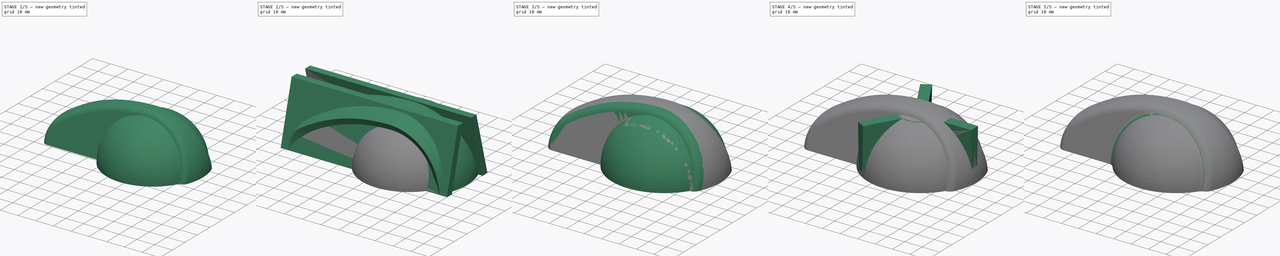
[diagram: build sequence overview — one tinted view per stage of 5, left to right]
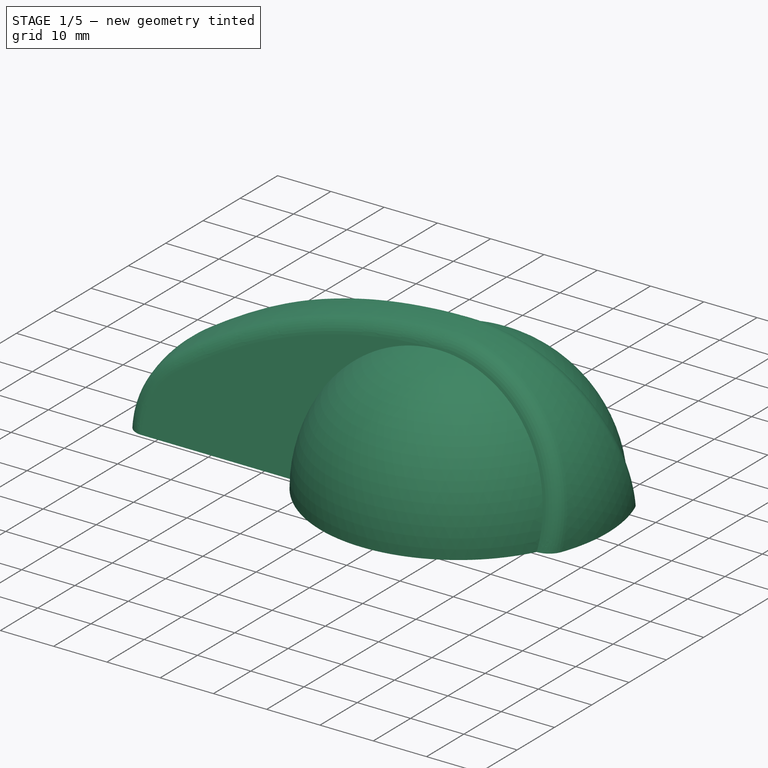
[diagram: stage 1 of 5 — iso view after this stage's code; geometry added in this stage tinted green]
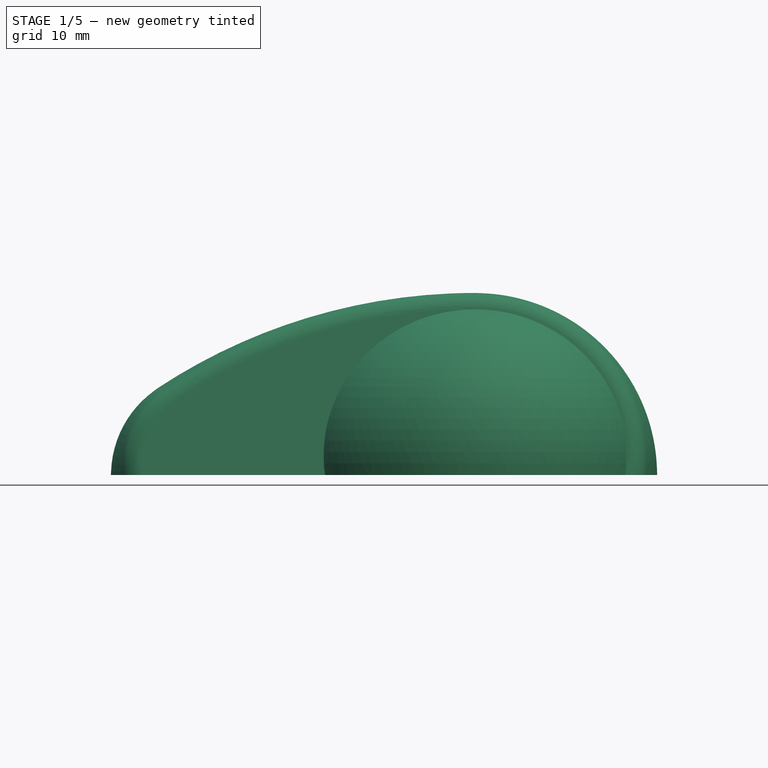
[diagram: stage 1 of 5 — front view after this stage's code; geometry added in this stage tinted green]
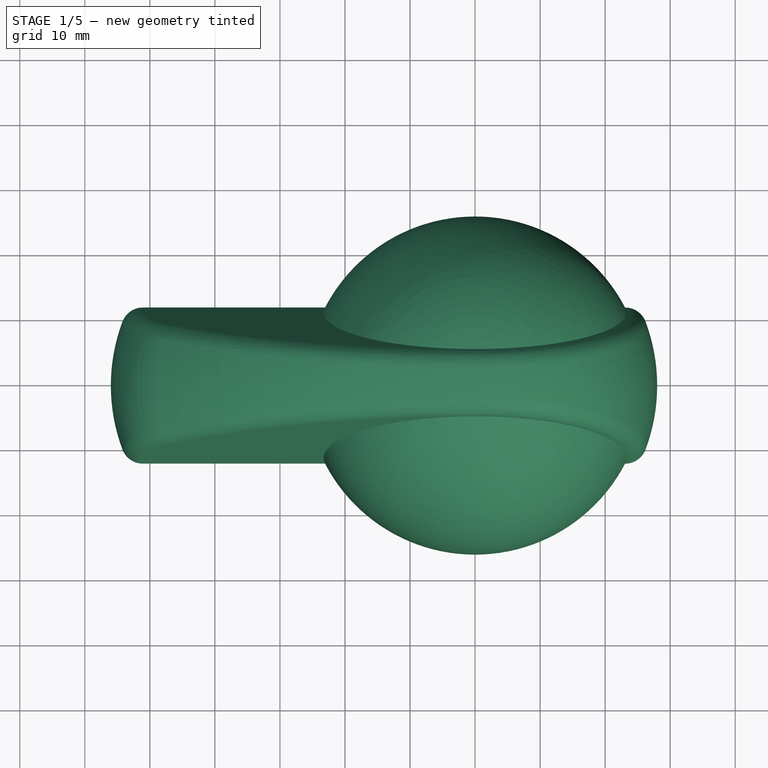
[diagram: stage 1 of 5 — top view after this stage's code; geometry added in this stage tinted green]
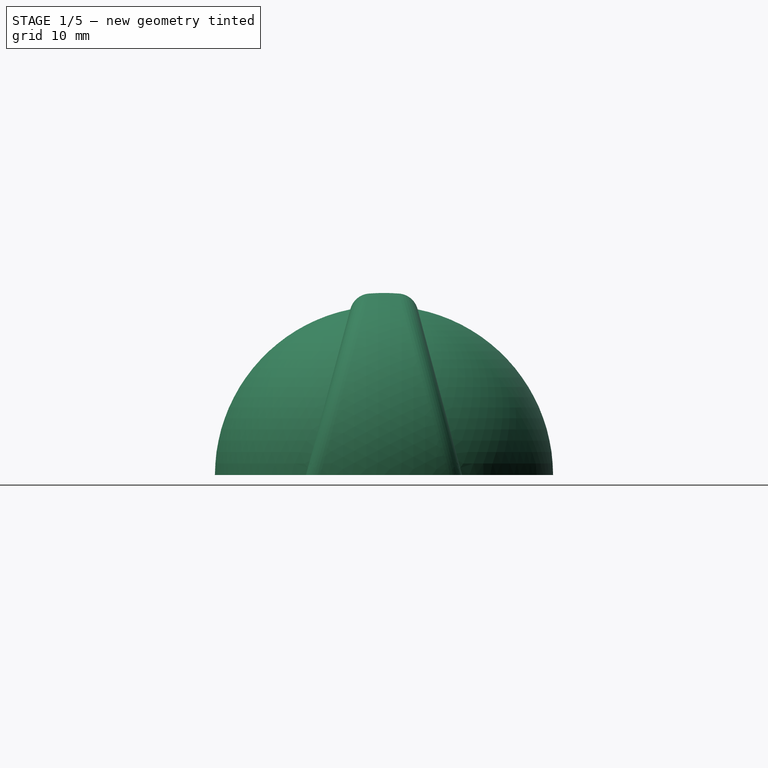
[diagram: stage 1 of 5 — right view after this stage's code; geometry added in this stage tinted green]
FCSTD DOCUMENT  (FreeCAD 1.0R39319 (Git))
Label: Mania2006-S2
License: All rights reserved
LicenseURL: https://en.wikipedia.org/wiki/All_rights_reserved
objects: Sketcher::SketchObject×29, PartDesign::Body×9, PartDesign::Boolean×8, PartDesign::SubtractivePipe×6, PartDesign::Fillet×6, PartDesign::AdditivePipe×3, PartDesign::AdditiveLoft×3, PartDesign::AdditiveSphere×2, App::VarSet×1, PartDesign::Pad×1, PartDesign::PolarPattern×1, PartDesign::FeatureBase×1
note: 150 computed .brp shape members not serialized (recipe doc carries the construction recipe); baked Part::Feature solids carry a one-line shape summary decoded from their .brp

FEATURE [Sketcher::SketchObject] Sketch025  label="InnerBaseBox"
  ArcFitTolerance = 1e-06
  AttachmentSupport = -> [XY_Plane004]
  FullyConstrained = true
  MakeInternals = false
  MapMode = 5
  sketch-geometry (4):
    g0: LineSegment StartX=-56 StartY=12 StartZ=0 EndX=-56 EndY=-12 EndZ=0
    g1: LineSegment StartX=-56 StartY=-12 StartZ=0 EndX=28 EndY=-12 EndZ=0
    g2: LineSegment StartX=28 StartY=-12 StartZ=0 EndX=28 EndY=12 EndZ=0
    g3: LineSegment StartX=28 StartY=12 StartZ=0 EndX=-56 EndY=12 EndZ=0
  constraints (11):
    c: Coincident(g0,g1)
    c: Coincident(g1,g2)
    c: Coincident(g2,g3)
    c: Coincident(g3,g0)
    c: Vertical(g2)
    c: Horizontal(g1)
    c: Horizontal(g3)
    c: DistanceX(g3,g3) = 84
    c: DistanceY(g2,g2) = 24
    c: Symmetric(g0,g0,g-1)
    c: DistanceX(g-1,g2) = 28
FEATURE [Sketcher::SketchObject] Sketch026  label="InnerBaseSweep"
  ArcFitTolerance = 1e-06
  AttachmentSupport = -> [YZ_Plane004]
  ExternalGeometry = -> [Sketch025]
  FullyConstrained = true
  MakeInternals = false
  MapMode = 5
  Placement = pos=(0,0,0) rot=(0.57735,0.57735,0.57735;2.0944rad)
  sketch-geometry (4):
    g0: ArcOfCircle CenterX=0 CenterY=0 CenterZ=0 NormalX=0 NormalY=0 NormalZ=1 AngleXU=0 Radius=28 StartAngle=1.05171 EndAngle=2.03794
    g1: LineSegment StartX=-12.6095 StartY=25 StartZ=0 EndX=-12.6095 EndY=50 EndZ=0
    g2: LineSegment StartX=-12.6095 StartY=50 StartZ=0 EndX=13.8905 EndY=50 EndZ=0
    g3: LineSegment StartX=13.8905 StartY=50 StartZ=0 EndX=13.8905 EndY=24.3116 EndZ=0
  constraints (12):
    c: Coincident(g0,g-1)
    c: Radius(g0) = 28
    c: Coincident(g0,g1)
    c: Coincident(g1,g2)
    c: Horizontal(g2)
    c: Coincident(g2,g3)
    c: Coincident(g3,g0)
    c: Perpendicular(g3,g2)
    c: Perpendicular(g1,g2)
    c: DistanceY(g1,g1) = 25
    c: DistanceX(g2,g2) = 26.5
    c: Distance(g-1,g2) = 50
FEATURE [Sketcher::SketchObject] Sketch027  label="InnerBaseSweepPath"
  ArcFitTolerance = 1e-06
  AttachmentSupport = -> [XZ_Plane004]
  FullyConstrained = true
  MakeInternals = false
  MapMode = 5
  Placement = pos=(0,0,0) rot=(1,0,0;1.5708rad)
  sketch-geometry (3):
    g0: ArcOfCircle CenterX=0 CenterY=0 CenterZ=0 NormalX=0 NormalY=0 NormalZ=1 AngleXU=0 Radius=28 StartAngle=0 EndAngle=1.5708
    g1: ArcOfCircle CenterX=-40 CenterY=0 CenterZ=0 NormalX=0 NormalY=0 NormalZ=1 AngleXU=0 Radius=16 StartAngle=2.15371 EndAngle=3.14159
    g2: ArcOfCircle CenterX=0 CenterY=-60.6667 CenterZ=0 NormalX=0 NormalY=0 NormalZ=1 AngleXU=0 Radius=88.6667 StartAngle=1.5708 EndAngle=2.15371
  constraints (10):
    c: Radius(g0) = 28
    c: Coincident(g0,g-1)
    c: PointOnObject(g0,g-1)
    c: Radius(g1) = 16
    c: PointOnObject(g1,g-1)
    c: DistanceX(g1,g0) = 84
    c: Tangent(g2,g1) = -1.5708
    c: Tangent(g2,g0) = -1.5708
    c: PointOnObject(g0,g-2)
    c: PointOnObject(g1,g-1)
FEATURE [PartDesign::Pad] Pad  label="InnerBox"
  Direction = (0,0,1)
  Length = 30
  Length2 = 10
  Profile = -> Sketch025
  ReferenceAxis = -> Sketch025 [N_Axis]
  Refine = true
  Suppressed = false
  Type = 0
FEATURE [PartDesign::SubtractivePipe] SubtractivePipe003  label="InnerBase"
  AuxilleryCurvelinear = true
  AuxillerySpineTangent = false
  BaseFeature = -> Pad
  Binormal = (0,0,0)
  Mode = 0
  Profile = -> Sketch026
  Refine = true
  Spine = -> Sketch027
  SpineTangent = false
  Suppressed = false
  Transformation = 0
  Transition = 0
FEATURE [Sketcher::SketchObject] Sketch028  label="InnerRWallSide"
  ArcFitTolerance = 1e-06
  AttachmentSupport = -> [XY_Plane004]
  FullyConstrained = true
  MakeInternals = false
  MapMode = 5
  sketch-geometry (4):
    g0: LineSegment StartX=-60 StartY=-12 StartZ=0 EndX=-60 EndY=-18 EndZ=0
    g1: LineSegment StartX=-60 StartY=-18 StartZ=0 EndX=32 EndY=-18 EndZ=0
    g2: LineSegment StartX=32 StartY=-18 StartZ=0 EndX=32 EndY=-12 EndZ=0
    g3: LineSegment StartX=32 StartY=-12 StartZ=0 EndX=-60 EndY=-12 EndZ=0
  constraints (12):
    c: Coincident(g0,g1)
    c: Coincident(g1,g2)
    c: Coincident(g2,g3)
    c: Coincident(g3,g0)
    c: Vertical(g0)
    c: Vertical(g2)
    c: Horizontal(g1)
    c: Horizontal(g3)
    c: Distance(g0,g2) = 92
    c: Distance(g1,g3) = 6
    c: Distance(g3,g-1) = 12
    c: Distance(g-2,g2) = 32
FEATURE [Sketcher::SketchObject] Sketch029  label="InnerRWallSweep"
  ArcFitTolerance = 1e-06
  AttachmentSupport = -> [YZ_Plane004]
  FullyConstrained = true
  MakeInternals = false
  MapMode = 5
  Placement = pos=(0,0,0) rot=(0.57735,0.57735,0.57735;2.0944rad)
  expr: Constraints[1] = 90 ° - <<VarSet>>.Base_Slope
  sketch-geometry (1):
    g0: LineSegment StartX=-15 StartY=0 StartZ=0 EndX=-6.96152 EndY=30 EndZ=0
  constraints (4):
    c: PointOnObject(g0,g-1)
    c: Angle(g-1,g0) = 1.309
    c: Distance(g0,g-2) = 15
    c: DistanceY(g0,g0) = 30
FEATURE [PartDesign::SubtractivePipe] SubtractivePipe004  label="SweepInnerRWall"
  AuxilleryCurvelinear = true
  AuxillerySpineTangent = false
  BaseFeature = -> SubtractivePipe003
  Binormal = (0,0,0)
  Mode = 0
  Profile = -> Sketch028
  Refine = true
  Spine = -> Sketch029
  SpineTangent = false
  Suppressed = false
  Transformation = 0
  Transition = 0
FEATURE [Sketcher::SketchObject] Sketch030  label="InnerLWallSide"
  ArcFitTolerance = 1e-06
  AttachmentSupport = -> [XY_Plane004]
  FullyConstrained = true
  MakeInternals = false
  MapMode = 5
  sketch-geometry (4):
    g0: LineSegment StartX=-60 StartY=18 StartZ=0 EndX=-60 EndY=12 EndZ=0
    g1: LineSegment StartX=-60 StartY=12 StartZ=0 EndX=32 EndY=12 EndZ=0
    g2: LineSegment StartX=32 StartY=12 StartZ=0 EndX=32 EndY=18 EndZ=0
    g3: LineSegment StartX=32 StartY=18 StartZ=0 EndX=-60 EndY=18 EndZ=0
  constraints (12):
    c: Coincident(g0,g1)
    c: Coincident(g1,g2)
    c: Coincident(g2,g3)
    c: Coincident(g3,g0)
    c: Vertical(g0)
    c: Vertical(g2)
    c: Horizontal(g1)
    c: Horizontal(g3)
    c: Distance(g0,g2) = 92
    c: Distance(g1,g3) = 6
    c: Distance(g-1,g1) = 12
    c: Distance(g-2,g2) = 32
FEATURE [Sketcher::SketchObject] Sketch031  label="InnerLWallSweep"
  ArcFitTolerance = 1e-06
  AttachmentSupport = -> [YZ_Plane004]
  FullyConstrained = true
  MakeInternals = false
  MapMode = 5
  Placement = pos=(0,0,0) rot=(0.57735,0.57735,0.57735;2.0944rad)
  expr: Constraints[1] = 90 ° - <<VarSet>>.Base_Slope
  sketch-geometry (1):
    g0: LineSegment StartX=15 StartY=0 StartZ=0 EndX=7.23543 EndY=28.9778 EndZ=0
  constraints (4):
    c: PointOnObject(g0,g-1)
    c: Angle(g0,g-1) = 1.309
    c: Distance(g0,g0) = 30
    c: Distance(g0,g-1) = 15
FEATURE [PartDesign::SubtractivePipe] SubtractivePipe005  label="SweepInnerLWall"
  AuxilleryCurvelinear = true
  AuxillerySpineTangent = false
  BaseFeature = -> SubtractivePipe004
  Binormal = (0,0,0)
  Mode = 0
  Profile = -> Sketch030
  Refine = true
  Spine = -> Sketch031
  SpineTangent = false
  Suppressed = false
  Transformation = 0
  Transition = 0
FEATURE [PartDesign::Body] Body003  label="Shell"
  AllowCompound = false
  Group = -> [Sketch020,Sketch021,Boolean,Boolean001,Boolean002,SubtractivePipe,Sketch,Sketch022,SubtractivePipe001,Sketch023,Sketch024,SubtractivePipe002,Fillet,Sphere001,Boolean006,Boolean007,Fillet003,Fillet004,Fillet005]
  Origin = -> Origin003
  Tip = -> Fillet005
FEATURE [PartDesign::Body] Body004  label="InnerModel"
  AllowCompound = false
  Group = -> [Sketch025,Sketch026,Sketch027,Pad,SubtractivePipe003,Sketch028,Sketch029,SubtractivePipe004,Sketch030,Sketch031,SubtractivePipe005,Sphere,Fillet001,Fillet002]
  Origin = -> Origin004
  Tip = -> Fillet002
FEATURE [PartDesign::AdditiveSphere] Sphere  label="InnerHalfSphere26mm"
  Angle1 = 0
  Angle2 = 90
  Angle3 = 360
  AttacherType = Attacher::AttachEngine3D
  AttachmentSupport = -> [Body003,XY_Plane004,Origin004]
  BaseFeature = -> SubtractivePipe005
  Radius = 26
  Refine = true
  Suppressed = false
FEATURE [PartDesign::Fillet] Fillet001
  Base = -> Sphere [Edge1,Edge11]
  BaseFeature = -> Sphere
  Radius = 3.2
  Refine = true
  SupportTransform = false
  Suppressed = false
  UseAllEdges = false
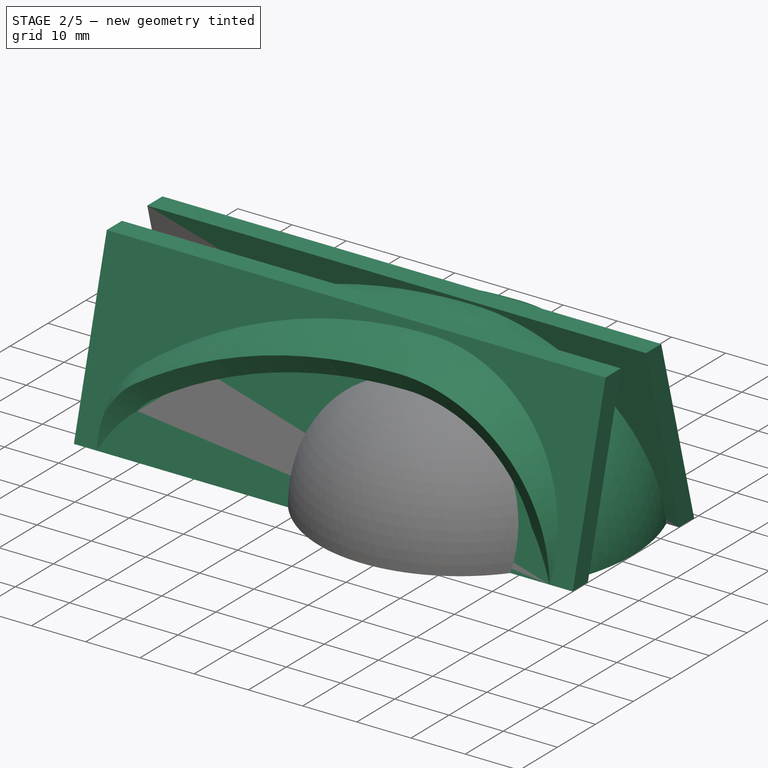
[diagram: stage 2 of 5 — iso view after this stage's code; geometry added in this stage tinted green]
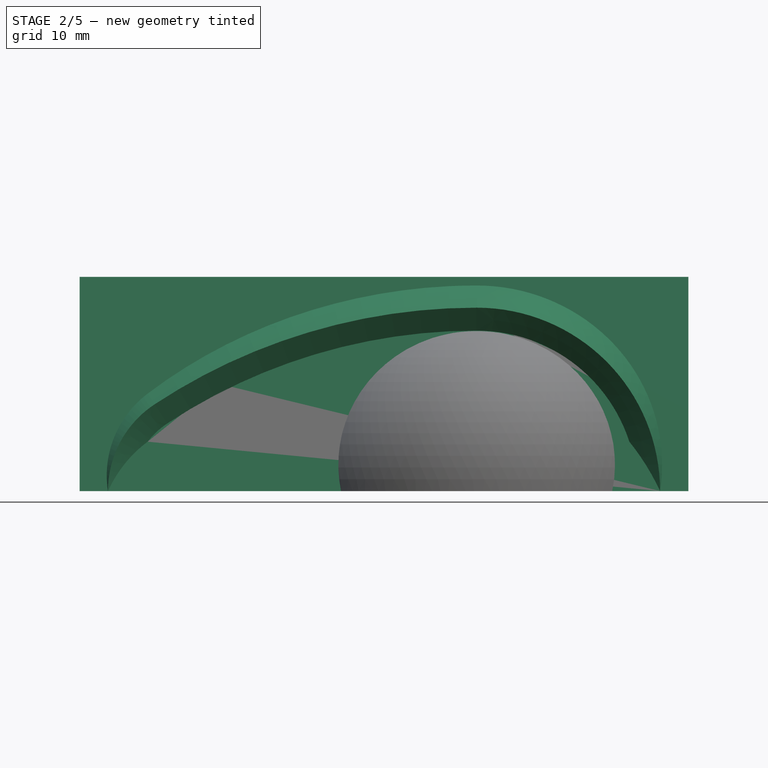
[diagram: stage 2 of 5 — front view after this stage's code; geometry added in this stage tinted green]
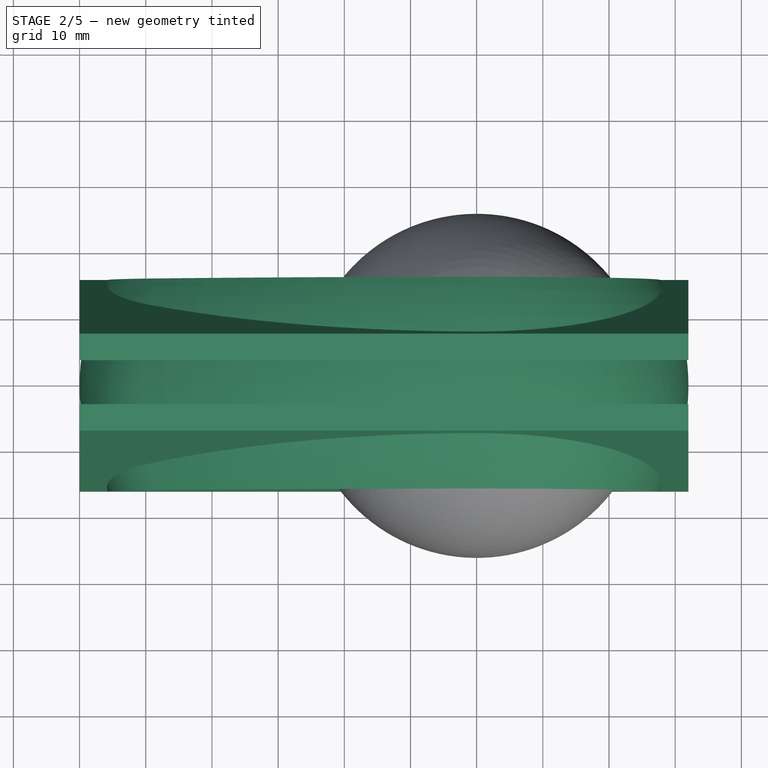
[diagram: stage 2 of 5 — top view after this stage's code; geometry added in this stage tinted green]
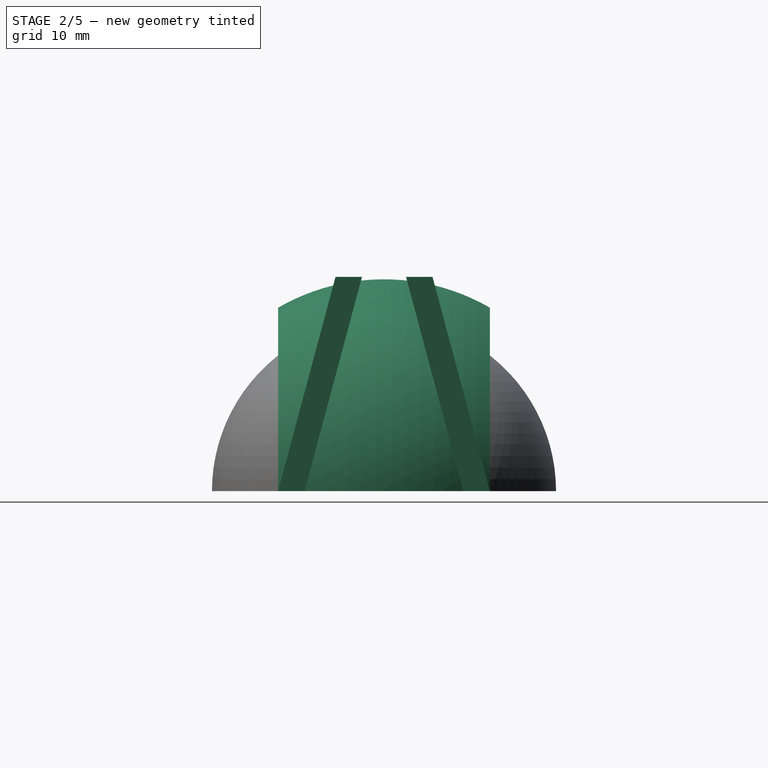
[diagram: stage 2 of 5 — right view after this stage's code; geometry added in this stage tinted green]
FEATURE [Sketcher::SketchObject] Sketch009  label="SweepOutline"
  ArcFitTolerance = 1e-06
  FullyConstrained = false
  MakeInternals = false
  MapMode = 5
  Placement = pos=(0,0,0) rot=(1,0,0;1.5708rad)
  sketch-geometry (3):
    g0: ArcOfCircle CenterX=0 CenterY=0 CenterZ=0 NormalX=0 NormalY=0 NormalZ=1 AngleXU=0 Radius=32 StartAngle=0 EndAngle=1.5708
    g1: ArcOfCircle CenterX=-40 CenterY=0 CenterZ=0 NormalX=0 NormalY=0 NormalZ=1 AngleXU=0 Radius=20 StartAngle=2.15371 EndAngle=3.14159
    g2: ArcOfCircle CenterX=0 CenterY=-60.6667 CenterZ=0 NormalX=0 NormalY=0 NormalZ=1 AngleXU=0 Radius=92.6667 StartAngle=1.5708 EndAngle=2.15371
  constraints (9):
    c: Coincident(g0,g-1)
    c: PointOnObject(g0,g-1)
    c: PointOnObject(g1,g-1)
    c: Radius(g0) = 32
    c: Radius(g1) = 20
    c: DistanceX(g1,g0) = 92
    c: Tangent(g2,g0) = -1.5708
    c: Tangent(g2,g1) = -1.5708
    c: PointOnObject(g2,g-2)
FEATURE [Sketcher::SketchObject] Sketch010  label="base001"
  ArcFitTolerance = 1e-06
  ExternalGeometry = -> [Sketch009]
  FullyConstrained = true
  MakeInternals = false
  MapMode = 5
  sketch-geometry (4):
    g0: LineSegment StartX=32 StartY=-16 StartZ=0 EndX=32 EndY=16 EndZ=0
    g1: LineSegment StartX=32 StartY=16 StartZ=0 EndX=-60 EndY=16 EndZ=0
    g2: LineSegment StartX=-60 StartY=16 StartZ=0 EndX=-60 EndY=-16 EndZ=0
    g3: LineSegment StartX=-60 StartY=-16 StartZ=0 EndX=32 EndY=-16 EndZ=0
  constraints (11):
    c: Coincident(g0,g1)
    c: Coincident(g1,g2)
    c: Coincident(g2,g3)
    c: Coincident(g3,g0)
    c: Vertical(g2)
    c: Horizontal(g1)
    c: Horizontal(g3)
    c: Symmetric(g0,g0,g-1)
    c: PointOnObject(g-4,g0)
    c: DistanceY(g0,g0) = 32
    c: PointOnObject(g-3,g2)
FEATURE [Sketcher::SketchObject] Sketch011  label="R32Outline"
  ArcFitTolerance = 1e-06
  ExternalGeometry = -> [Sketch009,Sketch010]
  FullyConstrained = true
  MakeInternals = false
  MapMode = 5
  Placement = pos=(0,0,0) rot=(0.57735,0.57735,0.57735;2.0944rad)
  sketch-geometry (4):
    g0: ArcOfCircle CenterX=0 CenterY=0 CenterZ=0 NormalX=0 NormalY=0 NormalZ=1 AngleXU=0 Radius=32 StartAngle=1.0472 EndAngle=2.0944
    g1: ArcOfCircle CenterX=0 CenterY=0 CenterZ=0 NormalX=0 NormalY=0 NormalZ=1 AngleXU=0 Radius=28 StartAngle=1.0472 EndAngle=2.0944
    g2: LineSegment StartX=14 StartY=24.2487 StartZ=0 EndX=16 EndY=27.7128 EndZ=0
    g3: LineSegment StartX=-16 StartY=27.7128 StartZ=0 EndX=-14 EndY=24.2487 EndZ=0
  constraints (12):
    c: Coincident(g0,g-1)
    c: Vertical(g0,g-5)
    c: PointOnObject(g-3,g0)
    c: Radius(g1) = 28
    c: Coincident(g1,g0)
    c: Coincident(g2,g1)
    c: Coincident(g2,g0)
    c: Coincident(g3,g0)
    c: Coincident(g3,g1)
    c: Perpendicular(g1,g3)
    c: Horizontal(g0,g0)
    c: Perpendicular(g1,g2)
FEATURE [PartDesign::AdditivePipe] AdditivePipe  label="TopShell"
  AuxilleryCurvelinear = true
  AuxillerySpineTangent = false
  Binormal = (0,0,0)
  Mode = 0
  Placement = pos=(0,0,0) rot=(0.57735,0.57735,0.57735;2.0944rad)
  Profile = -> Sketch011
  Refine = true
  Spine = -> Sketch009
  SpineTangent = false
  Suppressed = false
  Transformation = 0
  Transition = 0
FEATURE [PartDesign::Body] Body
  AllowCompound = false
  Group = -> [Sketch010,Sketch009,Sketch011,AdditivePipe]
  Origin = -> Origin
  Tip = -> AdditivePipe
FEATURE [Sketcher::SketchObject] Sketch013  label="RWallSweep"
  ArcFitTolerance = 1e-06
  AttachmentSupport = -> [YZ_Plane001]
  FullyConstrained = true
  MakeInternals = false
  MapMode = 5
  Placement = pos=(0,0,0) rot=(0.57735,0.57735,0.57735;2.0944rad)
  expr: Constraints[0] = <<VarSet>>.Base_WallHeight
  expr: Constraints[2] = 90 ° - <<VarSet>>.Base_Slope
  sketch-geometry (1):
    g0: LineSegment StartX=-14.4939 StartY=0 StartZ=0 EndX=-5.82343 EndY=32.3585 EndZ=0
  constraints (4):
    c: Distance(g0) = 33.5
    c: PointOnObject(g0,g-1)
    c: Angle(g-1,g0) = 1.309
    c: Distance(g-2,g0) = 14
FEATURE [Sketcher::SketchObject] Sketch014  label="RWall001"
  ArcFitTolerance = 1e-06
  AttachmentSupport = -> [XY_Plane001]
  FullyConstrained = true
  MakeInternals = false
  MapMode = 5
  sketch-geometry (4):
    g0: LineSegment StartX=-60 StartY=-12 StartZ=0 EndX=-60 EndY=-16 EndZ=0
    g1: LineSegment StartX=-60 StartY=-16 StartZ=0 EndX=32 EndY=-16 EndZ=0
    g2: LineSegment StartX=32 StartY=-16 StartZ=0 EndX=32 EndY=-12 EndZ=0
    g3: LineSegment StartX=32 StartY=-12 StartZ=0 EndX=-60 EndY=-12 EndZ=0
  constraints (12):
    c: Coincident(g0,g1)
    c: Coincident(g1,g2)
    c: Coincident(g2,g3)
    c: Coincident(g3,g0)
    c: Vertical(g0)
    c: Vertical(g2)
    c: Horizontal(g1)
    c: Horizontal(g3)
    c: Distance(g1,g-1) = 16
    c: DistanceY(g0,g0) = 4
    c: DistanceX(g0,g-1) = 60
    c: DistanceX(g3,g3) = 92
FEATURE [App::VarSet] VarSet
  Base_Slope = 15
  Base_Tilt = 2
  Base_WallHeight = 33.5
FEATURE [PartDesign::AdditivePipe] AdditivePipe001  label="RWallAdditivePipe"
  AuxilleryCurvelinear = true
  AuxillerySpineTangent = false
  Binormal = (0,0,0)
  Mode = 0
  Profile = -> Sketch014
  Refine = true
  Spine = -> Sketch013
  SpineTangent = false
  Suppressed = false
  Transformation = 0
  Transition = 0
FEATURE [PartDesign::Body] Body001  label="RWall"
  AllowCompound = false
  Group = -> [Sketch014,Sketch013,AdditivePipe001]
  Origin = -> Origin001
  Tip = -> AdditivePipe001
FEATURE [Sketcher::SketchObject] Sketch018  label="LWallSweep"
  ArcFitTolerance = 1e-06
  AttachmentSupport = -> [YZ_Plane002]
  FullyConstrained = true
  MakeInternals = false
  MapMode = 5
  Placement = pos=(0,0,0) rot=(0.57735,0.57735,0.57735;2.0944rad)
  expr: Constraints[1] = 90 ° - <<VarSet>>.Base_Slope
  expr: Constraints[3] = <<VarSet>>.Base_WallHeight
  sketch-geometry (1):
    g0: LineSegment StartX=14 StartY=0 StartZ=0 EndX=5.32956 EndY=32.3585 EndZ=0
  constraints (4):
    c: PointOnObject(g0,g-1)
    c: Angle(g0,g-1) = 1.309
    c: DistanceX(g-1,g0) = 14
    c: Distance(g0,g0) = 33.5
FEATURE [Sketcher::SketchObject] Sketch019  label="LWall001"
  ArcFitTolerance = 1e-06
  AttachmentSupport = -> [XY_Plane002]
  ExternalGeometry = -> [AdditivePipe001]
  FullyConstrained = true
  MakeInternals = false
  MapMode = 5
  sketch-geometry (4):
    g0: LineSegment StartX=-60 StartY=16 StartZ=0 EndX=-60 EndY=12 EndZ=0
    g1: LineSegment StartX=-60 StartY=12 StartZ=0 EndX=32 EndY=12 EndZ=0
    g2: LineSegment StartX=32 StartY=12 StartZ=0 EndX=32 EndY=16 EndZ=0
    g3: LineSegment StartX=32 StartY=16 StartZ=0 EndX=-60 EndY=16 EndZ=0
  constraints (12):
    c: Coincident(g0,g1)
    c: Coincident(g1,g2)
    c: Coincident(g2,g3)
    c: Coincident(g3,g0)
    c: Vertical(g0)
    c: Vertical(g2)
    c: Horizontal(g1)
    c: Horizontal(g3)
    c: Distance(g3,g-1) = 16
    c: Vertical(g0,g-3)
    c: Equal(g-3,g0)
    c: Vertical(g1,g-4)
FEATURE [PartDesign::AdditivePipe] AdditivePipe002
  AuxilleryCurvelinear = true
  AuxillerySpineTangent = false
  Binormal = (0,0,0)
  Mode = 0
  Profile = -> Sketch019
  Refine = true
  Spine = -> Sketch018
  SpineTangent = false
  Suppressed = false
  Transformation = 0
  Transition = 0
FEATURE [PartDesign::Body] Body002  label="LWall"
  AllowCompound = false
  Group = -> [Sketch019,Sketch018,AdditivePipe002]
  Origin = -> Origin002
  Tip = -> AdditivePipe002
FEATURE [Sketcher::SketchObject] Sketch020  label="WallsCut"
  ArcFitTolerance = 1e-06
  ExternalGeometry = -> [Sketch009,Sketch010]
  FullyConstrained = true
  MakeInternals = false
  MapMode = 5
  Placement = pos=(0,0,0) rot=(0.57735,0.57735,0.57735;2.0944rad)
  sketch-geometry (6):
    g0: ArcOfCircle CenterX=0 CenterY=0 CenterZ=0 NormalX=0 NormalY=0 NormalZ=1 AngleXU=0 Radius=32 StartAngle=1.0472 EndAngle=2.0944
    g1: LineSegment StartX=-23 StartY=27.7128 StartZ=0 EndX=-23 EndY=60 EndZ=0
    g2: LineSegment StartX=-23 StartY=60 StartZ=0 EndX=23 EndY=60 EndZ=0
    g3: LineSegment StartX=23 StartY=60 StartZ=0 EndX=23 EndY=27.7128 EndZ=0
    g4: LineSegment StartX=-23 StartY=27.7128 StartZ=0 EndX=-16 EndY=27.7128 EndZ=0
    g5: LineSegment StartX=16 StartY=27.7128 StartZ=0 EndX=23 EndY=27.7128 EndZ=0
  constraints (18):
    c: Coincident(g0,g-1)
    c: PointOnObject(g-3,g0)
    c: Vertical(g1)
    c: Coincident(g1,g2)
    c: Horizontal(g2)
    c: Coincident(g2,g3)
    c: Vertical(g3)
    c: Horizontal(g1,g3)
    c: DistanceX(g2,g2) = 46
    c: Distance(g-1,g2) = 60
    c: Distance(g3,g-2) = 23
    c: Vertical(g0,g-5)
    c: Vertical(g0,g-4)
    c: Coincident(g4,g1)
    c: Coincident(g4,g0)
    c: Coincident(g5,g0)
    c: Coincident(g5,g3)
    c: Horizontal(g4)
FEATURE [Sketcher::SketchObject] Sketch021  label="WallSweep"
  ArcFitTolerance = 1e-06
  FullyConstrained = false
  MakeInternals = false
  MapMode = 5
  Placement = pos=(0,0,0) rot=(1,0,0;1.5708rad)
  sketch-geometry (3):
    g0: ArcOfCircle CenterX=0 CenterY=0 CenterZ=0 NormalX=0 NormalY=0 NormalZ=1 AngleXU=0 Radius=32 StartAngle=0 EndAngle=1.5708
    g1: ArcOfCircle CenterX=-40 CenterY=0 CenterZ=0 NormalX=0 NormalY=0 NormalZ=1 AngleXU=0 Radius=20 StartAngle=2.15371 EndAngle=3.14159
    g2: ArcOfCircle CenterX=0 CenterY=-60.6667 CenterZ=0 NormalX=0 NormalY=0 NormalZ=1 AngleXU=0 Radius=92.6667 StartAngle=1.5708 EndAngle=2.15371
  constraints (9):
    c: Coincident(g0,g-1)
    c: PointOnObject(g0,g-1)
    c: PointOnObject(g1,g-1)
    c: Radius(g0) = 32
    c: Radius(g1) = 20
    c: DistanceX(g1,g0) = 92
    c: Tangent(g2,g0) = -1.5708
    c: Tangent(g2,g1) = -1.5708
    c: PointOnObject(g2,g-2)
FEATURE [PartDesign::Boolean] Boolean  label="BodyFuse"
  Group = -> [Body]
  Refine = true
  Suppressed = false
  Type = 0
  UsePlacement = true
FEATURE [PartDesign::Boolean] Boolean001  label="RWallFuse"
  BaseFeature = -> Boolean
  Group = -> [Body001]
  Refine = true
  Suppressed = false
  Type = 0
  UsePlacement = true
FEATURE [PartDesign::Fillet] Fillet002
  Base = -> Fillet001 [Edge3,Edge25]
  BaseFeature = -> Fillet001
  Radius = 4
  Refine = true
  SupportTransform = false
  Suppressed = false
  UseAllEdges = false
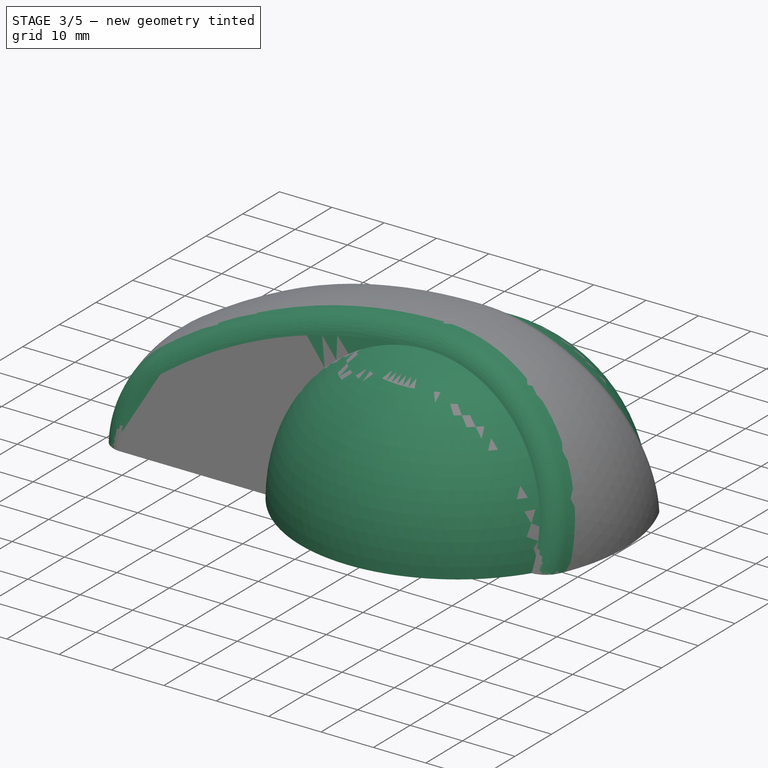
[diagram: stage 3 of 5 — iso view after this stage's code; geometry added in this stage tinted green]
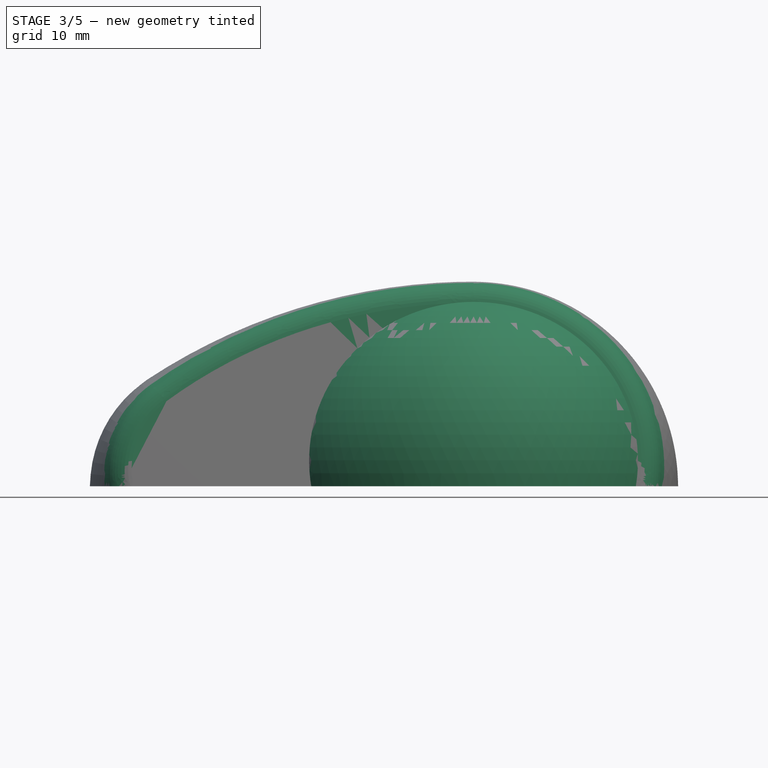
[diagram: stage 3 of 5 — front view after this stage's code; geometry added in this stage tinted green]
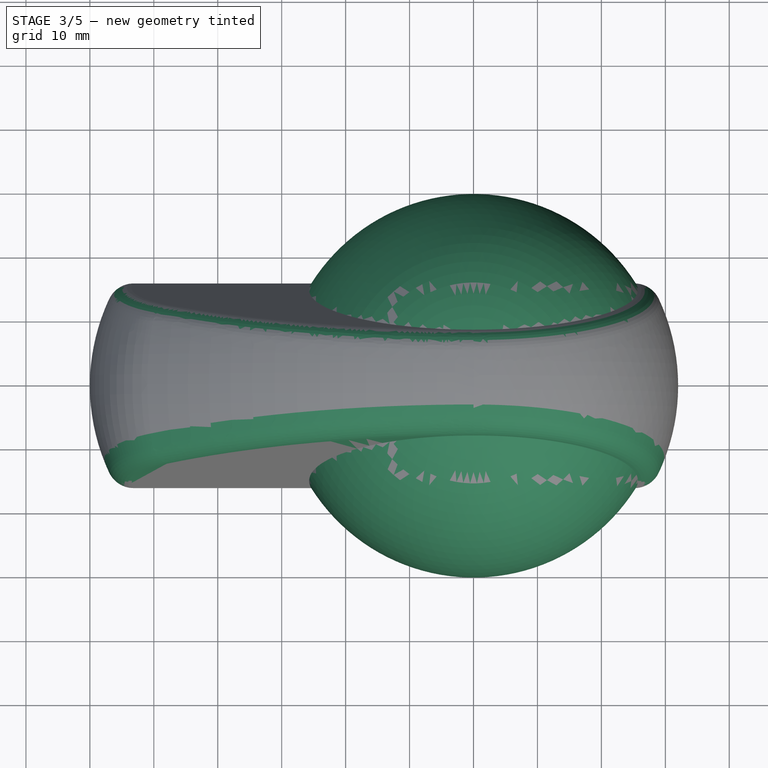
[diagram: stage 3 of 5 — top view after this stage's code; geometry added in this stage tinted green]
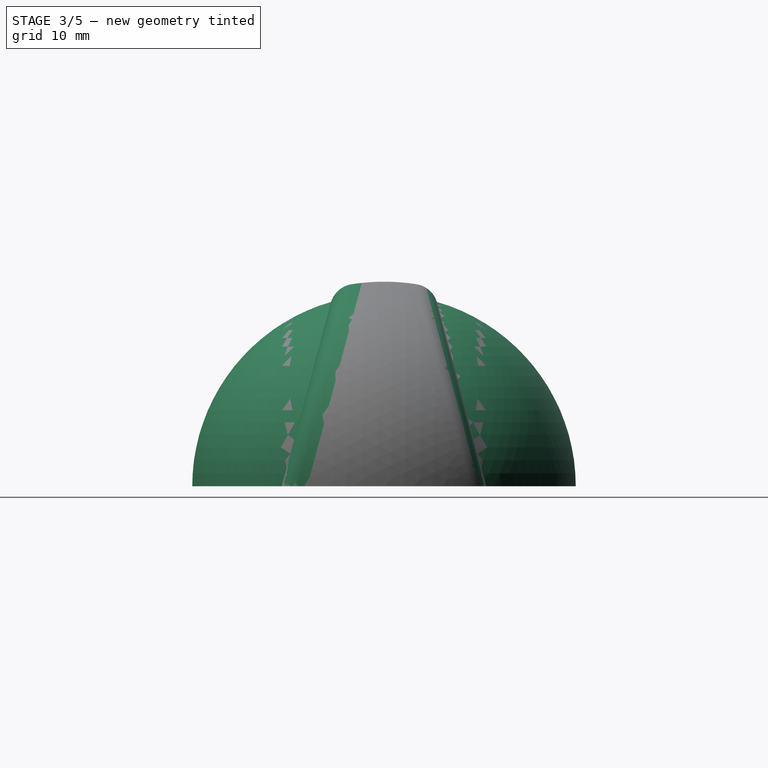
[diagram: stage 3 of 5 — right view after this stage's code; geometry added in this stage tinted green]
FEATURE [PartDesign::Boolean] Boolean002  label="LWallFuse"
  BaseFeature = -> Boolean001
  Group = -> [Body002]
  Refine = true
  Suppressed = false
  Type = 0
  UsePlacement = true
FEATURE [PartDesign::SubtractivePipe] SubtractivePipe  label="SweepWallTop"
  AuxilleryCurvelinear = true
  AuxillerySpineTangent = false
  BaseFeature = -> Boolean002
  Binormal = (0,0,0)
  Mode = 0
  Profile = -> Sketch020
  Refine = true
  Spine = -> Sketch021
  SpineTangent = false
  Suppressed = false
  Transformation = 0
  Transition = 0
FEATURE [Sketcher::SketchObject] Sketch  label="SweepLWallSide001"
  ArcFitTolerance = 1e-06
  AttachmentSupport = -> [XY_Plane003]
  FullyConstrained = true
  MakeInternals = false
  MapMode = 5
  sketch-geometry (4):
    g0: LineSegment StartX=-62 StartY=-16 StartZ=0 EndX=-62 EndY=-22 EndZ=0
    g1: LineSegment StartX=-62 StartY=-22 StartZ=0 EndX=34 EndY=-22 EndZ=0
    g2: LineSegment StartX=34 StartY=-22 StartZ=0 EndX=34 EndY=-16 EndZ=0
    g3: LineSegment StartX=34 StartY=-16 StartZ=0 EndX=-62 EndY=-16 EndZ=0
  constraints (12):
    c: Coincident(g0,g1)
    c: Coincident(g1,g2)
    c: Coincident(g2,g3)
    c: Coincident(g3,g0)
    c: Vertical(g0)
    c: Vertical(g2)
    c: Horizontal(g1)
    c: Horizontal(g3)
    c: Distance(g-1,g3) = 16
    c: DistanceY(g2,g2) = 6
    c: Distance(g2,g0) = 96
    c: Distance(g-2,g2) = 34
FEATURE [Sketcher::SketchObject] Sketch022  label="LWallSideSweep"
  ArcFitTolerance = 1e-06
  AttachmentSupport = -> [YZ_Plane003]
  FullyConstrained = true
  MakeInternals = false
  MapMode = 5
  Placement = pos=(0,0,0) rot=(0.57735,0.57735,0.57735;2.0944rad)
  expr: Constraints[1] = 90 ° - <<VarSet>>.Base_Slope
  sketch-geometry (1):
    g0: LineSegment StartX=-19 StartY=0 StartZ=0 EndX=-10.2002 EndY=32.8415 EndZ=0
  constraints (4):
    c: PointOnObject(g0,g-1)
    c: Angle(g-1,g0) = 1.309
    c: DistanceX(g0,g-1) = 19
    c: Distance(g0,g0) = 34
FEATURE [PartDesign::SubtractivePipe] SubtractivePipe001  label="SweepLWallSide"
  AuxilleryCurvelinear = true
  AuxillerySpineTangent = false
  BaseFeature = -> SubtractivePipe
  Binormal = (0,0,0)
  Mode = 0
  Profile = -> Sketch
  Refine = true
  Spine = -> Sketch022
  SpineTangent = false
  Suppressed = false
  Transformation = 0
  Transition = 0
FEATURE [Sketcher::SketchObject] Sketch023  label="RWallSideSweep"
  ArcFitTolerance = 1e-06
  AttachmentSupport = -> [YZ_Plane003]
  FullyConstrained = true
  MakeInternals = false
  MapMode = 5
  Placement = pos=(0,0,0) rot=(0.57735,0.57735,0.57735;2.0944rad)
  expr: Constraints[1] = 180 ° - (90 ° - <<VarSet>>.Base_Slope)
  sketch-geometry (1):
    g0: LineSegment StartX=19 StartY=0 StartZ=0 EndX=9.88973 EndY=34 EndZ=0
  constraints (4):
    c: PointOnObject(g0,g-1)
    c: Angle(g-1,g0) = 1.8326
    c: DistanceY(g0,g0) = 34
    c: DistanceX(g-1,g0) = 19
FEATURE [Sketcher::SketchObject] Sketch024  label="SweepRWallSide001"
  ArcFitTolerance = 1e-06
  AttachmentSupport = -> [XY_Plane003]
  FullyConstrained = true
  MakeInternals = false
  MapMode = 5
  sketch-geometry (4):
    g0: LineSegment StartX=-62 StartY=22 StartZ=0 EndX=-62 EndY=16 EndZ=0
    g1: LineSegment StartX=-62 StartY=16 StartZ=0 EndX=34 EndY=16 EndZ=0
    g2: LineSegment StartX=34 StartY=16 StartZ=0 EndX=34 EndY=22 EndZ=0
    g3: LineSegment StartX=34 StartY=22 StartZ=0 EndX=-62 EndY=22 EndZ=0
  constraints (12):
    c: Coincident(g0,g1)
    c: Coincident(g1,g2)
    c: Coincident(g2,g3)
    c: Coincident(g3,g0)
    c: Vertical(g0)
    c: Vertical(g2)
    c: Horizontal(g1)
    c: Horizontal(g3)
    c: DistanceX(g3,g3) = 96
    c: Distance(g-1,g1) = 16
    c: DistanceY(g2,g2) = 6
    c: Distance(g-2,g2) = 34
FEATURE [PartDesign::SubtractivePipe] SubtractivePipe002  label="SweepRWallSide"
  AuxilleryCurvelinear = true
  AuxillerySpineTangent = false
  BaseFeature = -> SubtractivePipe001
  Binormal = (0,0,0)
  Mode = 0
  Profile = -> Sketch024
  Refine = true
  Spine = -> Sketch023
  SpineTangent = false
  Suppressed = false
  Transformation = 0
  Transition = 0
FEATURE [PartDesign::Fillet] Fillet  label="ShellCurveFillter4mm"
  Base = -> SubtractivePipe002 [Edge28,Edge7]
  BaseFeature = -> SubtractivePipe002
  Radius = 4
  Refine = true
  SupportTransform = false
  Suppressed = false
  UseAllEdges = false
FEATURE [PartDesign::AdditiveSphere] Sphere001  label="TopHalfSphere30mm"
  Angle1 = 0
  Angle2 = 90
  Angle3 = 360
  AttacherType = Attacher::AttachEngine3D
  BaseFeature = -> Fillet
  Radius = 30
  Refine = true
  Suppressed = false
FEATURE [PartDesign::Boolean] Boolean006
  BaseFeature = -> Sphere001
  Group = -> [Body004]
  Refine = true
  Suppressed = false
  Type = 1
  UsePlacement = true
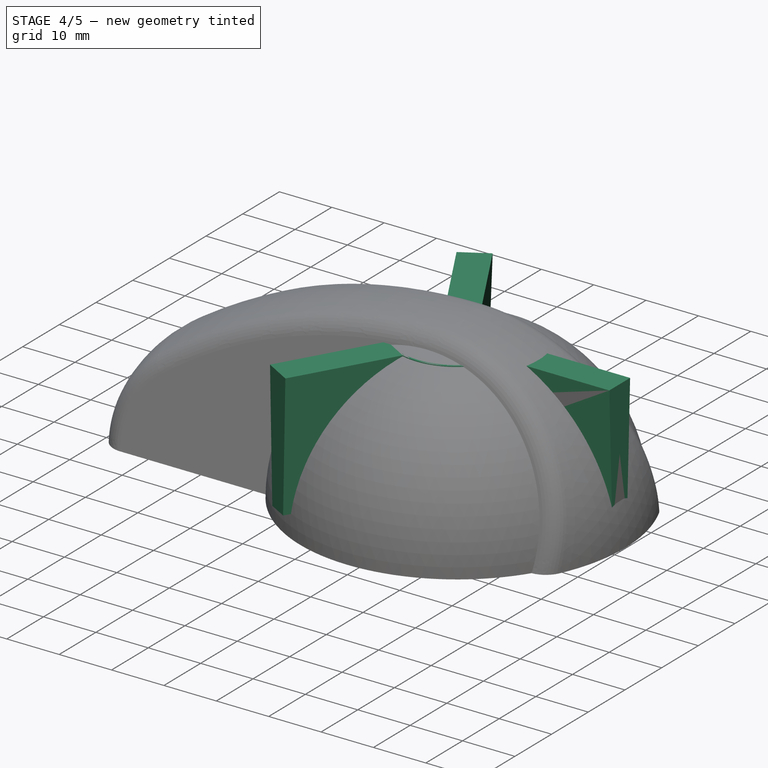
[diagram: stage 4 of 5 — iso view after this stage's code; geometry added in this stage tinted green]
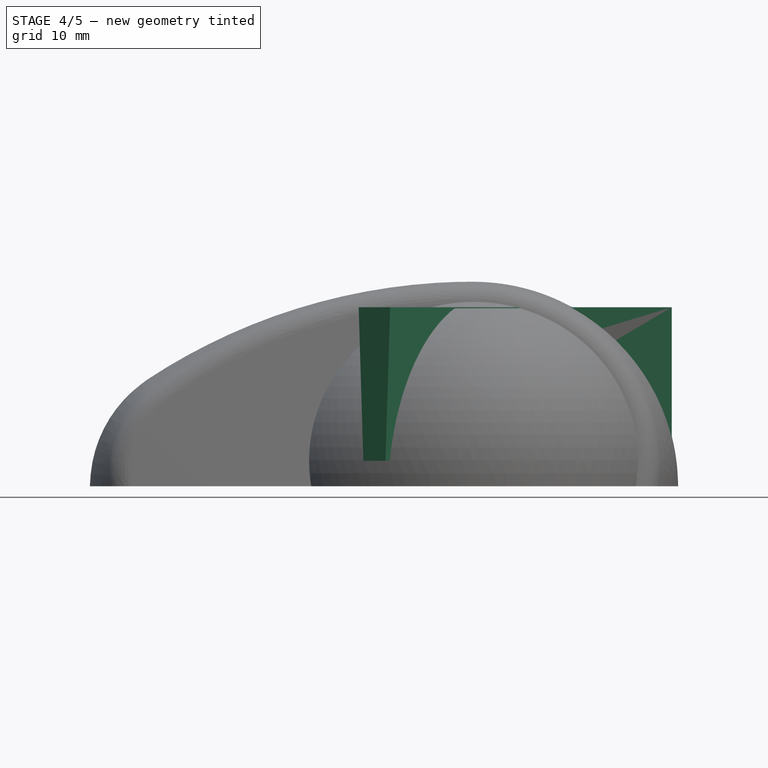
[diagram: stage 4 of 5 — front view after this stage's code; geometry added in this stage tinted green]
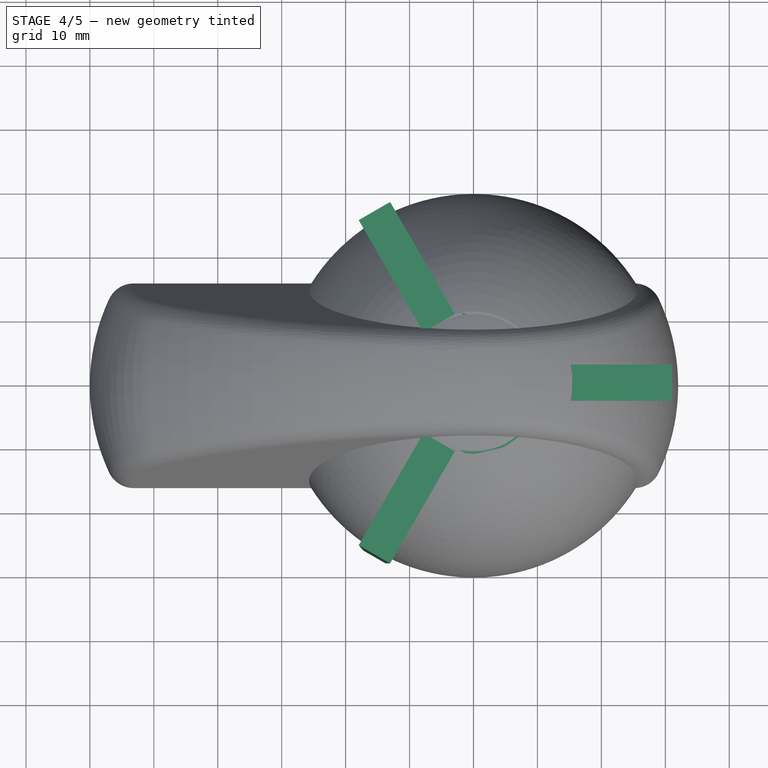
[diagram: stage 4 of 5 — top view after this stage's code; geometry added in this stage tinted green]
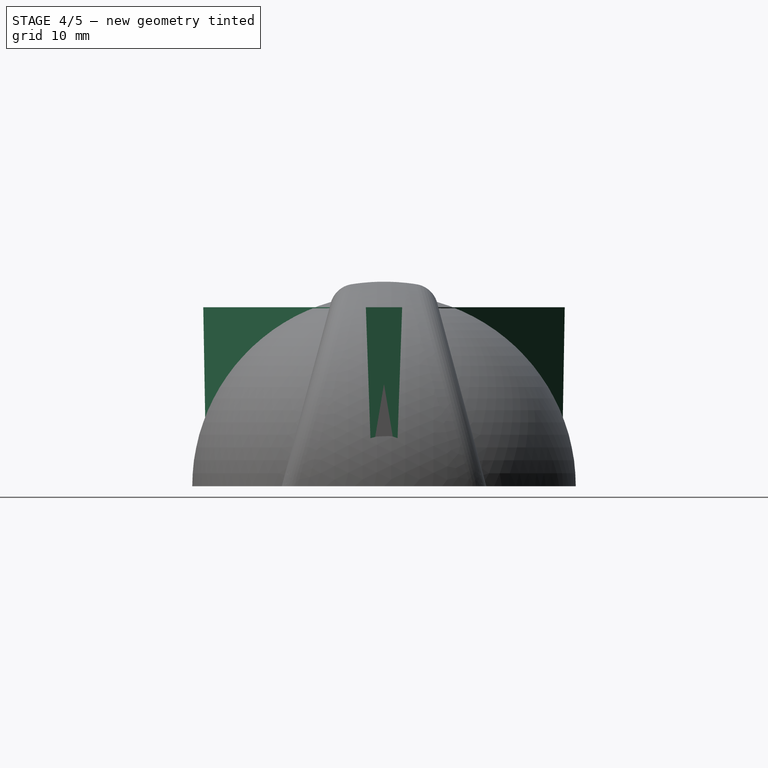
[diagram: stage 4 of 5 — right view after this stage's code; geometry added in this stage tinted green]
FEATURE [Sketcher::SketchObject] Sketch032  label="CylinderBottom20mm"
  ArcFitTolerance = 1e-06
  AttachmentOffset = pos=(0,0,4) rot=(0,0,1;0rad)
  AttachmentSupport = -> [XY_Plane005]
  FullyConstrained = true
  MakeInternals = false
  MapMode = 5
  Placement = pos=(0,0,4) rot=(0,0,1;0rad)
  sketch-geometry (1):
    g0: Circle CenterX=0 CenterY=0 CenterZ=0 NormalX=0 NormalY=0 NormalZ=1 AngleXU=0 Radius=10
  constraints (2):
    c: Coincident(g0,g-1)
    c: Diameter(g0) = 20
FEATURE [Sketcher::SketchObject] Sketch033  label="CylinderLoftTilt"
  ArcFitTolerance = 1e-06
  AttachmentSupport = -> [XZ_Plane005]
  ExternalGeometry = -> [Sketch032]
  FullyConstrained = true
  MakeInternals = false
  MapMode = 5
  Placement = pos=(0,0,0) rot=(1,0,0;1.5708rad)
  expr: Constraints[5] = 90 ° + <<VarSet>>.Base_Tilt
  sketch-geometry (2):
    g0: LineSegment StartX=11.1175 StartY=0 StartZ=0 EndX=10 EndY=32 EndZ=0
    g1: LineSegment [constr] StartX=0 StartY=32 StartZ=0 EndX=10 EndY=32 EndZ=0
  constraints (7):
    c: PointOnObject(g1,g-2)
    c: Coincident(g1,g0)
    c: Horizontal(g1)
    c: Vertical(g0,g-3)
    c: PointOnObject(g0,g-1)
    c: Angle(g1,g0) = 1.6057
    c: Distance(g-3,g1) = 28
FEATURE [Sketcher::SketchObject] Sketch034  label="CylinderTop"
  ArcFitTolerance = 1e-06
  AttachmentOffset = pos=(0,0,28) rot=(0,0,1;0rad)
  AttachmentSupport = -> [XY_Plane005]
  ExternalGeometry = -> [Sketch033]
  FullyConstrained = true
  MakeInternals = false
  MapMode = 5
  Placement = pos=(0,0,28) rot=(0,0,1;0rad)
  sketch-geometry (1):
    g0: Circle CenterX=0 CenterY=0 CenterZ=0 NormalX=0 NormalY=0 NormalZ=1 AngleXU=0 Radius=11.1175
  constraints (2):
    c: Coincident(g0,g-1)
    c: PointOnObject(g-3,g0)
FEATURE [PartDesign::AdditiveLoft] AdditiveLoft  label="CylinderBase"
  Closed = false
  Profile = -> Sketch032
  Refine = true
  Ruled = false
  Sections = -> [Sketch034]
  Suppressed = false
FEATURE [Sketcher::SketchObject] Sketch036  label="RibLoftTilt"
  ArcFitTolerance = 1e-06
  AttachmentSupport = -> [YZ_Plane006]
  FullyConstrained = true
  MakeInternals = false
  MapMode = 5
  Placement = pos=(0,0,0) rot=(0.57735,0.57735,0.57735;2.0944rad)
  expr: Constraints[7] = 90 ° + <<VarSet>>.Base_Tilt
  sketch-geometry (3):
    g0: LineSegment StartX=2.8381 StartY=28 StartZ=0 EndX=2 EndY=4 EndZ=0
    g1: LineSegment [constr] StartX=-5 StartY=28 StartZ=0 EndX=5 EndY=28 EndZ=0
    g2: LineSegment [constr] StartX=2 StartY=4 StartZ=0 EndX=0 EndY=4 EndZ=0
  constraints (11):
    c: Distance(g-1,g1) = 28
    c: PointOnObject(g0,g1)
    c: Coincident(g2,g0)
    c: PointOnObject(g2,g-2)
    c: Horizontal(g2)
    c: DistanceX(g2,g2) = 2
    c: DistanceY(g-1,g0) = 4
    c: Angle(g0,g-1) = 1.6057
    c: DistanceX(g1,g1) = 10
    c: Distance(g1,g-2) = 5
    c: Horizontal(g1)
FEATURE [Sketcher::SketchObject] Sketch035  label="RibTop"
  ArcFitTolerance = 1e-06
  AttachmentOffset = pos=(0,0,28) rot=(0,0,1;0rad)
  AttachmentSupport = -> [XY_Plane006]
  ExternalGeometry = -> [Sketch036]
  FullyConstrained = true
  MakeInternals = false
  MapMode = 5
  Placement = pos=(0,0,28) rot=(0,0,1;0rad)
  sketch-geometry (4):
    g0: LineSegment StartX=0 StartY=2.8381 StartZ=0 EndX=0 EndY=-2.8381 EndZ=0
    g1: LineSegment StartX=0 StartY=-2.8381 StartZ=0 EndX=31 EndY=-2.8381 EndZ=0
    g2: LineSegment StartX=31 StartY=-2.8381 StartZ=0 EndX=31 EndY=2.8381 EndZ=0
    g3: LineSegment StartX=31 StartY=2.8381 StartZ=0 EndX=0 EndY=2.8381 EndZ=0
  constraints (11):
    c: Coincident(g0,g1)
    c: Coincident(g1,g2)
    c: Coincident(g2,g3)
    c: Coincident(g3,g0)
    c: Vertical(g0)
    c: Horizontal(g1)
    c: Horizontal(g3)
    c: Distance(g0,g2) = 31
    c: Symmetric(g2,g1,g-1)
    c: PointOnObject(g0,g-2)
    c: PointOnObject(g-3,g3)
FEATURE [Sketcher::SketchObject] Sketch037  label="RibBottom"
  ArcFitTolerance = 1e-06
  AttachmentOffset = pos=(0,0,4) rot=(0,0,1;0rad)
  AttachmentSupport = -> [XY_Plane006]
  FullyConstrained = true
  MakeInternals = false
  MapMode = 5
  Placement = pos=(0,0,4) rot=(0,0,1;0rad)
  sketch-geometry (4):
    g0: LineSegment StartX=0 StartY=2 StartZ=0 EndX=0 EndY=-2 EndZ=0
    g1: LineSegment StartX=0 StartY=-2 StartZ=0 EndX=31 EndY=-2 EndZ=0
    g2: LineSegment StartX=31 StartY=-2 StartZ=0 EndX=31 EndY=2 EndZ=0
    g3: LineSegment StartX=31 StartY=2 StartZ=0 EndX=0 EndY=2 EndZ=0
  constraints (11):
    c: Coincident(g0,g1)
    c: Coincident(g1,g2)
    c: Coincident(g2,g3)
    c: Coincident(g3,g0)
    c: Vertical(g2)
    c: Horizontal(g1)
    c: Horizontal(g3)
    c: Symmetric(g0,g0,g-1)
    c: DistanceX(g3,g3) = 31
    c: PointOnObject(g0,g-2)
    c: DistanceY(g2,g2) = 4
FEATURE [PartDesign::AdditiveLoft] AdditiveLoft001  label="RibLoftBase"
  Closed = false
  Profile = -> Sketch035
  Refine = true
  Ruled = false
  Sections = -> [Sketch037]
  Suppressed = false
FEATURE [PartDesign::PolarPattern] PolarPattern
  Angle = 360
  Axis = -> Sketch035 [N_Axis]
  BaseFeature = -> AdditiveLoft001
  Mode = 0
  Occurrences = 3
  Offset = 120
  Originals = -> [AdditiveLoft001]
  Refine = true
  Suppressed = false
  TransformMode = 0
FEATURE [PartDesign::Body] Body006  label="Rib"
  AllowCompound = false
  Group = -> [Sketch035,Sketch036,Sketch037,AdditiveLoft001,PolarPattern]
  Origin = -> Origin006
  Tip = -> PolarPattern
FEATURE [PartDesign::Boolean] Boolean003  label="CylinderAndRibsFuse"
  BaseFeature = -> AdditiveLoft
  Group = -> [Body006]
  Refine = true
  Suppressed = false
  Type = 0
  UsePlacement = true
FEATURE [Sketcher::SketchObject] Sketch038  label="TubeBottom12mm"
  ArcFitTolerance = 1e-06
  AttachmentOffset = pos=(0,0,4) rot=(0,0,1;0rad)
  AttachmentSupport = -> [XY_Plane007]
  FullyConstrained = true
  MakeInternals = false
  MapMode = 5
  Placement = pos=(0,0,4) rot=(0,0,1;0rad)
  sketch-geometry (1):
    g0: Circle CenterX=0 CenterY=0 CenterZ=0 NormalX=0 NormalY=0 NormalZ=1 AngleXU=0 Radius=6
  constraints (2):
    c: Diameter(g0) = 12
    c: Coincident(g0,g-1)
FEATURE [Sketcher::SketchObject] Sketch039  label="TubeTiltPath"
  ArcFitTolerance = 1e-06
  AttachmentSupport = -> [XZ_Plane007]
  ExternalGeometry = -> [Sketch038]
  FullyConstrained = true
  MakeInternals = false
  MapMode = 5
  Placement = pos=(0,0,0) rot=(1,0,0;1.5708rad)
  expr: Constraints[2] = 90 ° + <<VarSet>>.Base_Tilt
  sketch-geometry (1):
    g0: LineSegment StartX=6 StartY=4 StartZ=0 EndX=6.8381 EndY=28 EndZ=0
  constraints (3):
    c: DistanceY(g-1,g0) = 28
    c: Coincident(g0,g-3)
    c: Angle(g0,g-3) = 1.6057
FEATURE [Sketcher::SketchObject] Sketch040  label="TubeTop"
  ArcFitTolerance = 1e-06
  AttachmentOffset = pos=(0,0,28) rot=(0,0,1;0rad)
  AttachmentSupport = -> [XY_Plane007]
  ExternalGeometry = -> [Sketch039]
  FullyConstrained = true
  MakeInternals = false
  MapMode = 5
  Placement = pos=(0,0,28) rot=(0,0,1;0rad)
  sketch-geometry (1):
    g0: Circle CenterX=0 CenterY=0 CenterZ=0 NormalX=0 NormalY=0 NormalZ=1 AngleXU=0 Radius=6.8381
  constraints (2):
    c: Coincident(g0,g-1)
    c: PointOnObject(g-3,g0)
FEATURE [PartDesign::AdditiveLoft] AdditiveLoft002  label="TubeCutBase"
  Closed = false
  Profile = -> Sketch038
  Refine = true
  Ruled = false
  Sections = -> [Sketch040]
  Suppressed = false
FEATURE [PartDesign::Body] Body005  label="CylinderWithRibs"
  AllowCompound = false
  Group = -> [Sketch032,Sketch033,Sketch034,AdditiveLoft,Boolean003,Boolean004,Boolean005]
  Origin = -> Origin005
  Tip = -> Boolean005
FEATURE [PartDesign::Body] Body008  label="RibsComm"
  AllowCompound = false
  Group = -> [Clone]
  Origin = -> Origin008
  Tip = -> Clone
FEATURE [PartDesign::FeatureBase] Clone
  BaseFeature = -> Body004
  Suppressed = false
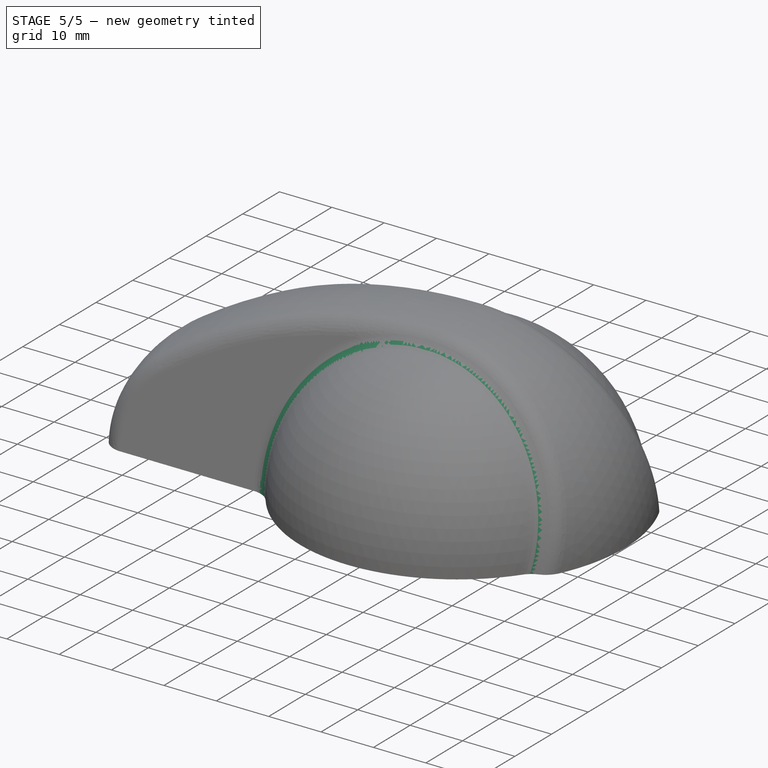
[diagram: stage 5 of 5 — iso view after this stage's code; geometry added in this stage tinted green]
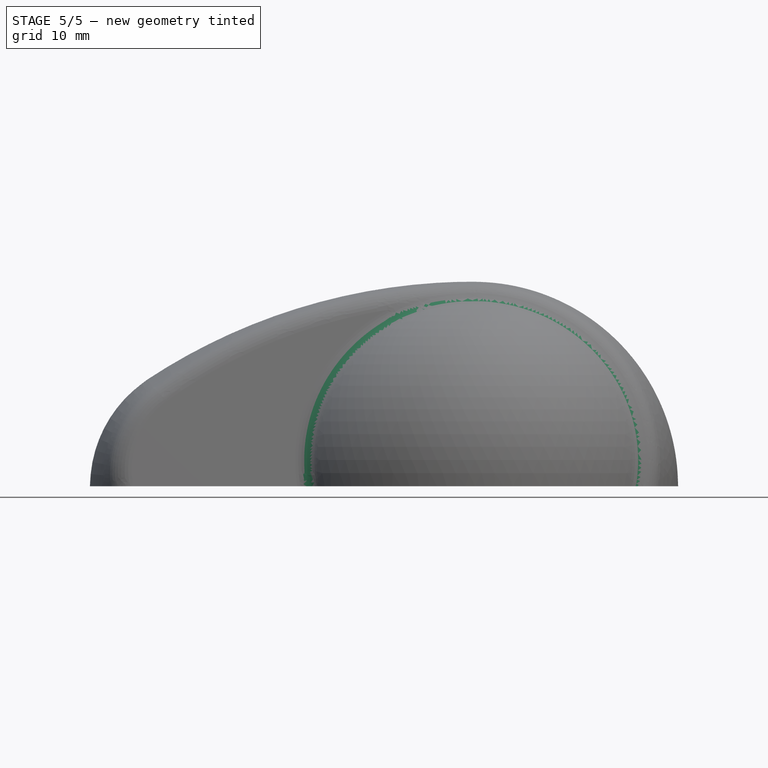
[diagram: stage 5 of 5 — front view after this stage's code; geometry added in this stage tinted green]
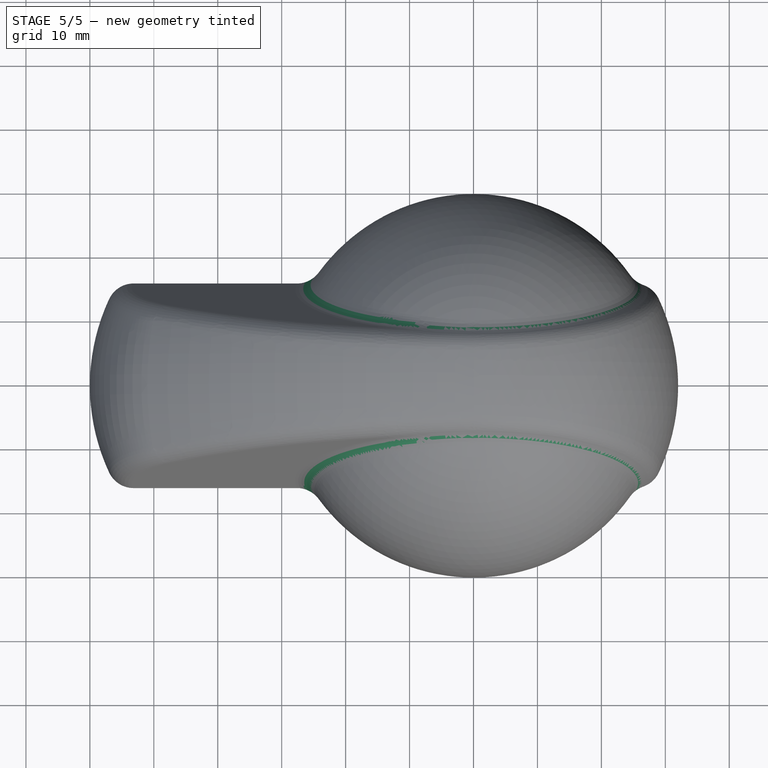
[diagram: stage 5 of 5 — top view after this stage's code; geometry added in this stage tinted green]
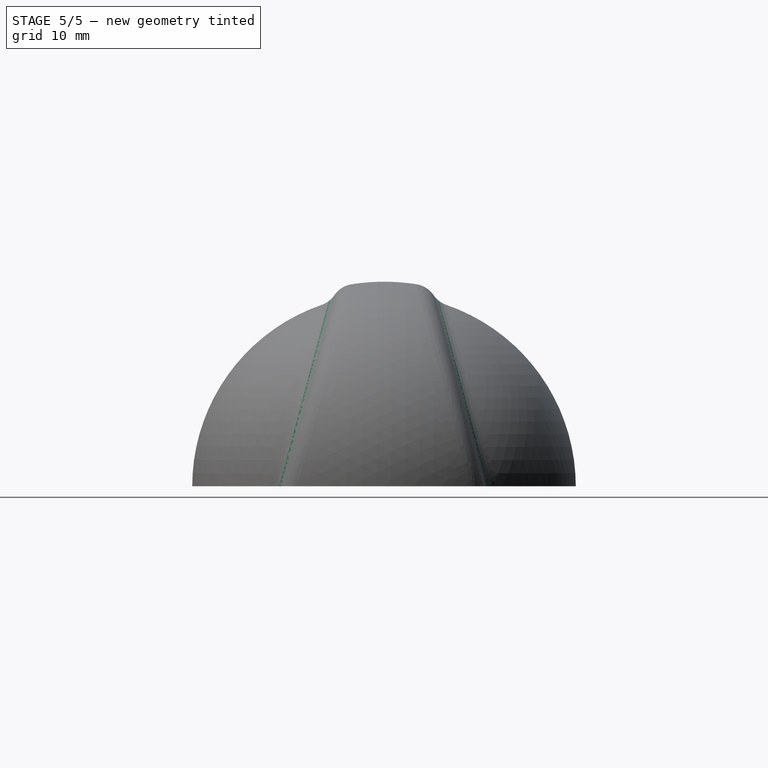
[diagram: stage 5 of 5 — right view after this stage's code; geometry added in this stage tinted green]
FEATURE [PartDesign::Body] Body007  label="Tube"
  AllowCompound = false
  Group = -> [Sketch038,Sketch039,Sketch040,AdditiveLoft002]
  Origin = -> Origin007
  Tip = -> AdditiveLoft002
FEATURE [PartDesign::Boolean] Boolean004  label="TubeCut"
  BaseFeature = -> Boolean003
  Group = -> [Body007]
  Refine = true
  Suppressed = false
  Type = 1
  UsePlacement = true
FEATURE [PartDesign::Boolean] Boolean005
  BaseFeature = -> Boolean004
  Group = -> [Body008]
  Refine = true
  Suppressed = false
  Type = 2
  UsePlacement = true
FEATURE [PartDesign::Boolean] Boolean007
  BaseFeature = -> Boolean006
  Group = -> [Body005]
  Refine = true
  Suppressed = false
  Type = 0
  UsePlacement = true
FEATURE [PartDesign::Fillet] Fillet003
  Base = -> Boolean007 [Edge162,Edge179,Edge12,Edge46]
  BaseFeature = -> Boolean007
  Radius = 1
  Refine = true
  SupportTransform = false
  Suppressed = false
  UseAllEdges = false
FEATURE [PartDesign::Fillet] Fillet004
  Base = -> Fillet003 [Edge163,Edge94,Edge95,Edge81,Edge32,Edge96,Edge178,Edge172,Edge171,Edge170,Edge176,Edge200,Edge174,Edge199,Edge169,Edge192,Edge167,Edge168,Edge166,Edge190,Edge161,Edge159,Edge158,Edge88,Edge162,Edge164,Edge89,Edge87]
  BaseFeature = -> Fillet003
  Radius = 1
  Refine = true
  SupportTransform = false
  Suppressed = false
  UseAllEdges = false
FEATURE [PartDesign::Fillet] Fillet005
  Base = -> Fillet004 [Edge246,Edge229]
  BaseFeature = -> Fillet004
  Radius = 4
  Refine = true
  SupportTransform = false
  Suppressed = false
  UseAllEdges = false
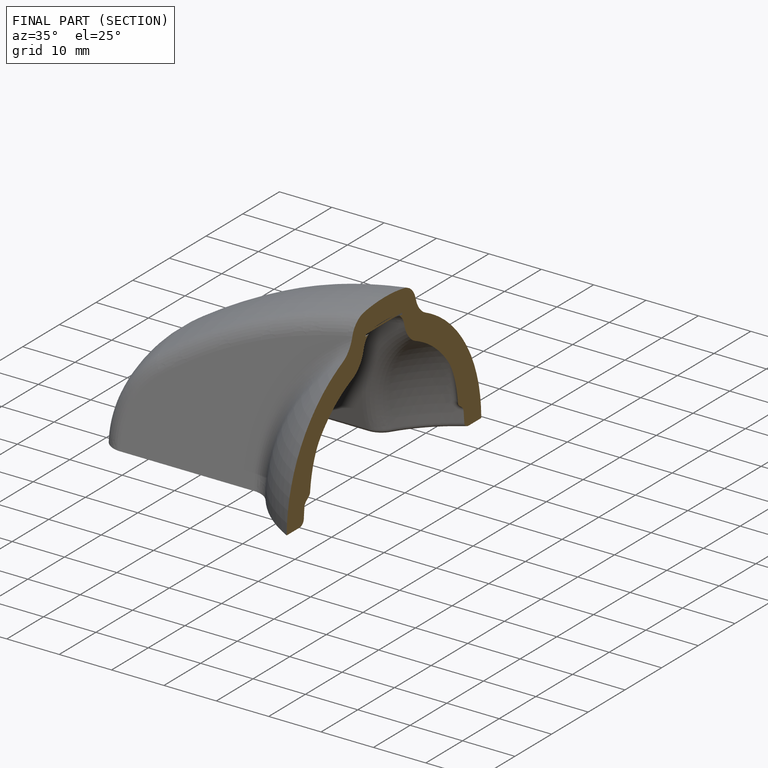
[diagram: finished part — half-section view (interior)]
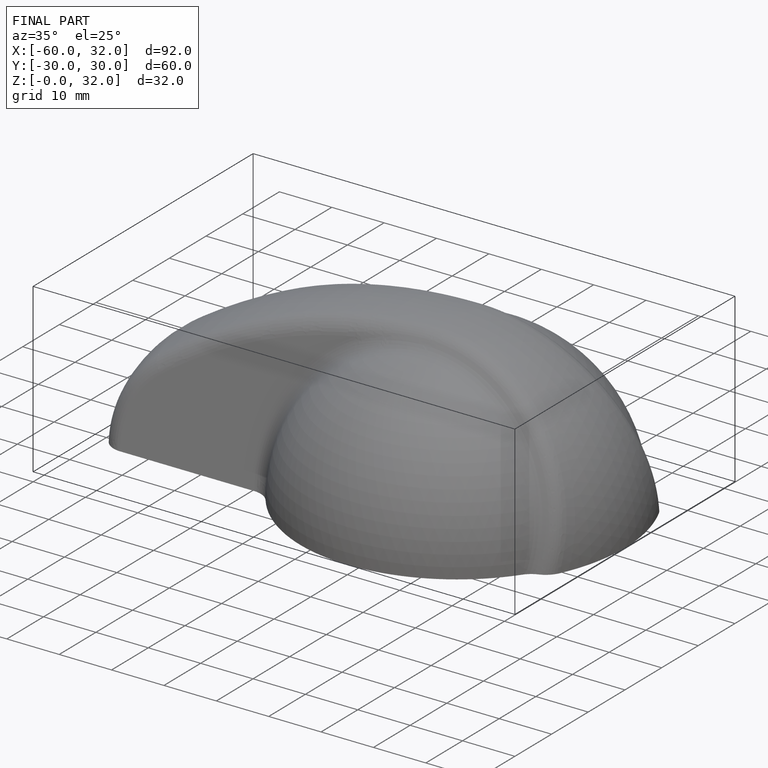
[diagram: finished part — iso view with bounding-box wireframe]
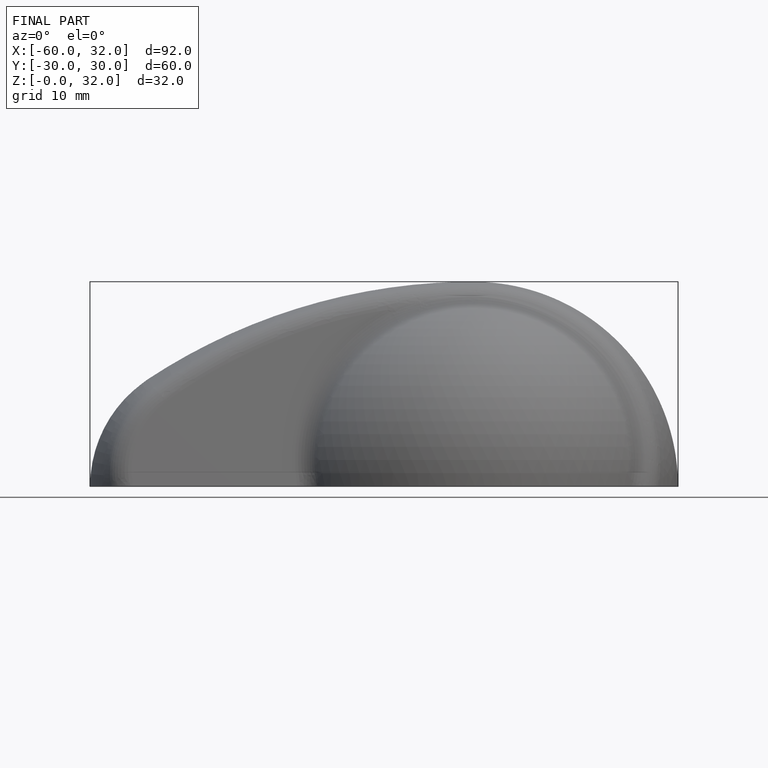
[diagram: finished part — front view with bounding-box wireframe]
